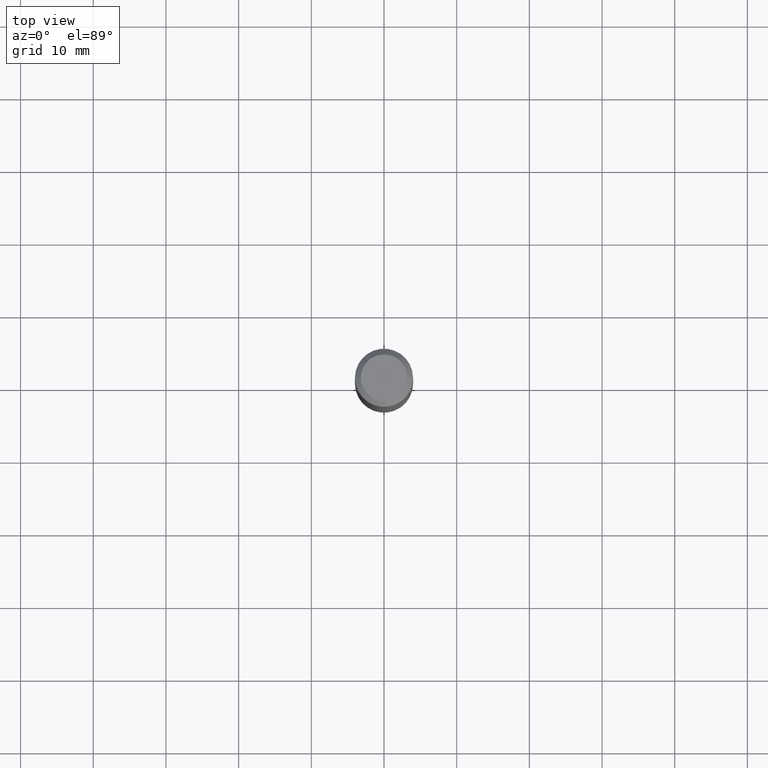
[diagram: clean part render]
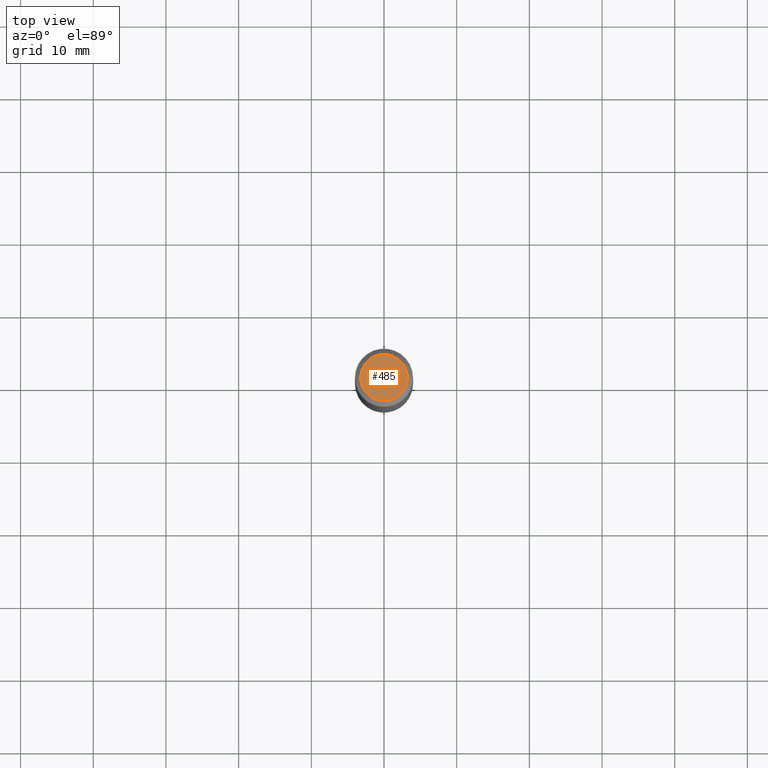
[diagram: same view with one face highlighted and labeled with its STEP entity id]
A machine part, top view. The second image highlights one B-rep face of the part: STEP entity #485.
In plain terms, the highlighted planar face has unit normal (0, -0, -1).
Its self-contained STEP definition (entity closure, byte-faithful):
#20 = CARTESIAN_POINT ( 'NONE',  ( -4.719860820353096954E-47, 6.738710358733626979E-33, 1.930043355456227940E-18 ) ) ;
#29 = VERTEX_POINT ( 'NONE', #136 ) ;
#52 = FACE_OUTER_BOUND ( 'NONE', #318, .T. ) ;
#70 = AXIS2_PLACEMENT_3D ( 'NONE', #20, #445, #279 ) ;
#86 = CIRCLE ( 'NONE', #331, 0.1260000000000000009 ) ;
#112 = DIRECTION ( 'NONE',  ( -2.445468806185136597E-29, 3.491481338843145583E-15, 1.000000000000000000 ) ) ;
#136 = CARTESIAN_POINT ( 'NONE',  ( -0.1260000000000000009, 9.348441284752484904E-16, 3.860086710906110326E-18 ) ) ;
#149 = ORIENTED_EDGE ( 'NONE', *, *, #164, .T. ) ;
#156 = ORIENTED_EDGE ( 'NONE', *, *, #503, .T. ) ;
#164 = EDGE_CURVE ( 'NONE', #29, #446, #359, .T. ) ;
#175 = DIRECTION ( 'NONE',  ( 1.000000000000000000, -6.982962677686265922E-15, 4.876281427513067258E-29 ) ) ;
#185 = CARTESIAN_POINT ( 'NONE',  ( -9.439721640706193907E-47, 1.347742071746725396E-32, 3.860086710912455880E-18 ) ) ;
#251 = CARTESIAN_POINT ( 'NONE',  ( -9.439721640706193907E-47, 1.347742071746725396E-32, 3.860086710912455880E-18 ) ) ;
#276 = DIRECTION ( 'NONE',  ( -2.445468806185136597E-29, 3.491481338843145583E-15, 1.000000000000000000 ) ) ;
#279 = DIRECTION ( 'NONE',  ( -1.000000000000000000, 6.982962677686265922E-15, -4.876176775795935793E-29 ) ) ;
#291 = CARTESIAN_POINT ( 'NONE',  ( 0.1260000000000000009, -1.027466422270894443E-15, 3.860086710919124220E-18 ) ) ;
#318 = EDGE_LOOP ( 'NONE', ( #149, #156 ) ) ;
#327 = AXIS2_PLACEMENT_3D ( 'NONE', #251, #276, #476 ) ;
#331 = AXIS2_PLACEMENT_3D ( 'NONE', #185, #112, #175 ) ;
#359 = CIRCLE ( 'NONE', #327, 0.1260000000000000009 ) ;
#390 = PLANE ( 'NONE',  #70 ) ;
#445 = DIRECTION ( 'NONE',  ( 2.438088387897960049E-29, -3.491481338843145188E-15, -1.000000000000000000 ) ) ;
#446 = VERTEX_POINT ( 'NONE', #291 ) ;
#476 = DIRECTION ( 'NONE',  ( 1.000000000000000000, -6.982962677686265922E-15, 4.876281427513067258E-29 ) ) ;
#485 = ADVANCED_FACE ( 'NONE', ( #52 ), #390, .F. ) ;
#503 = EDGE_CURVE ( 'NONE', #446, #29, #86, .T. ) ;